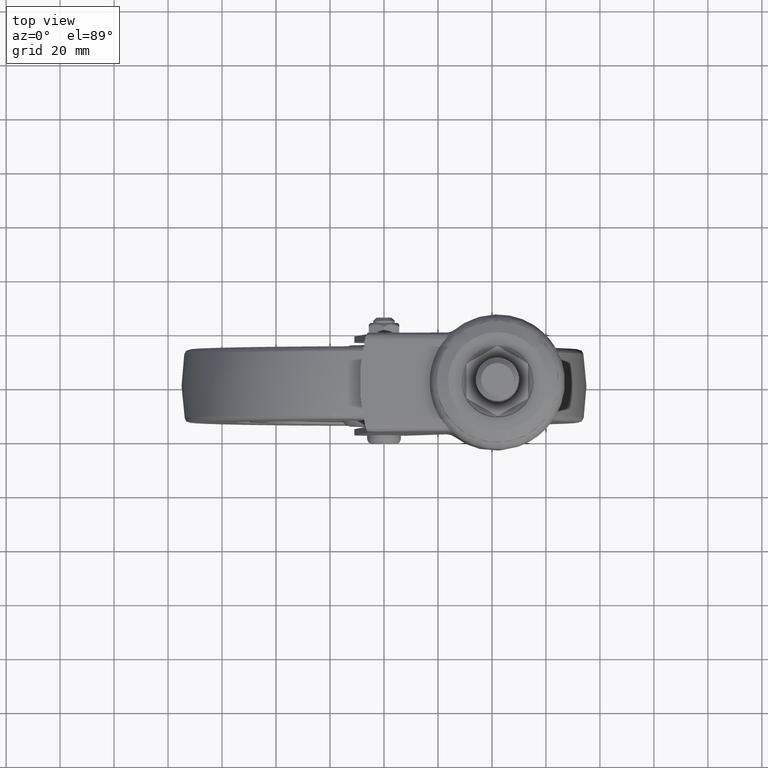
[diagram: clean part render]
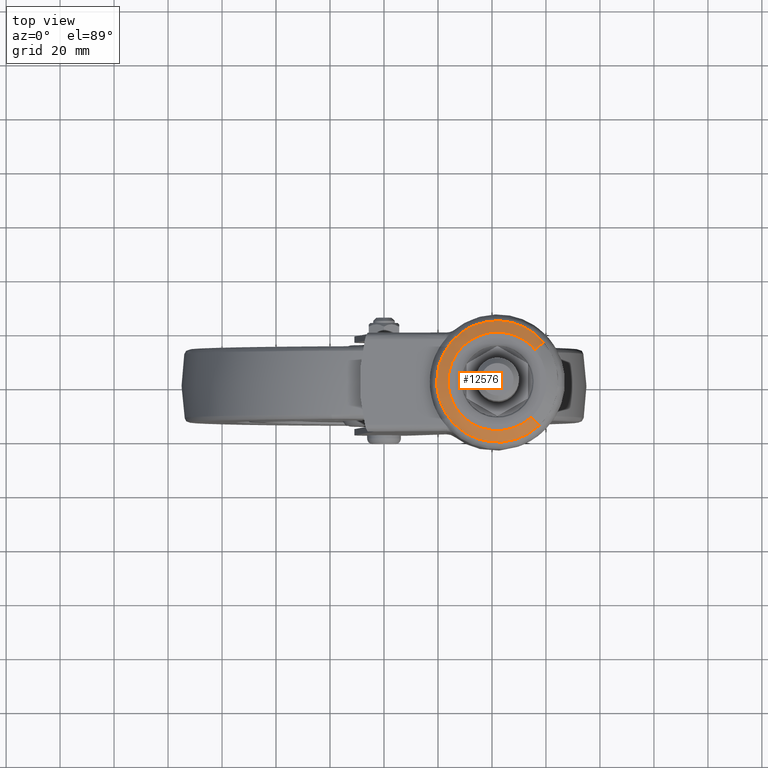
[diagram: same view with one face highlighted and labeled with its STEP entity id]
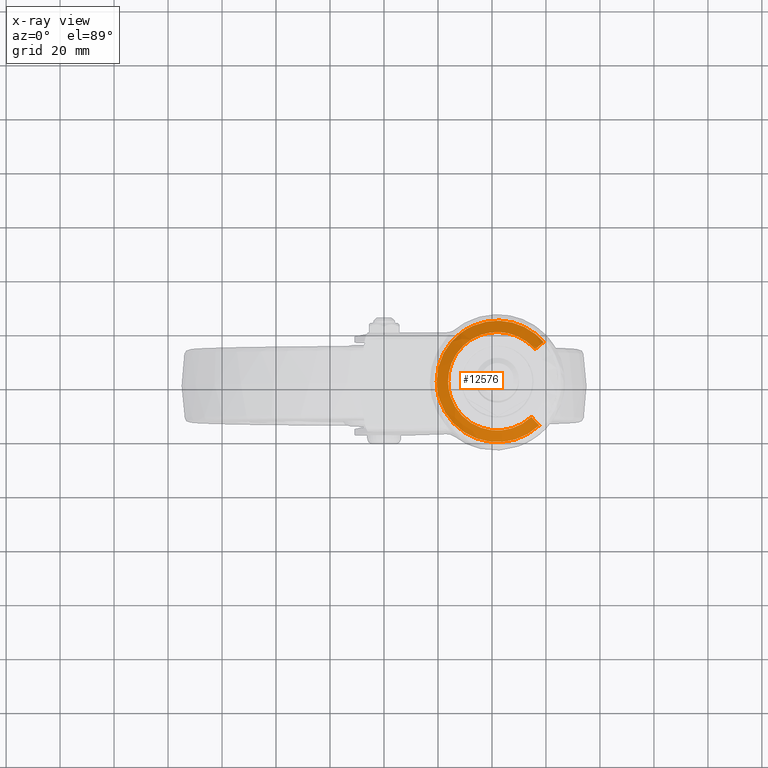
[diagram: x-ray of the same camera — body ghosted, the highlighted face saturated]
A machine part, top view. The second image highlights one B-rep face of the part: STEP entity #12576.
The next image is the same camera in x-ray: the body ghosted, the highlighted face saturated — about 0% of this face is hidden behind the body in this view.
In plain terms, the highlighted face is a freeform B-spline surface patch.
Its self-contained STEP definition (entity closure, byte-faithful):
#12201=CARTESIAN_POINT('',(55.995056423342227,17.617843734591879,97.899993897316563));
#12202=VERTEX_POINT('',#12201);
#12203=CARTESIAN_POINT('',(59.154957299173482,14.558759815509729,97.899993939861091));
#12204=VERTEX_POINT('',#12203);
#12205=CARTESIAN_POINT('',(55.995056423342234,17.617843734591876,97.899993897316563));
#12206=CARTESIAN_POINT('',(57.725215577037879,16.243460852997064,97.899993922917943));
#12207=CARTESIAN_POINT('',(59.154957299173482,14.558759815509735,97.899993939861091));
#12215=(BOUNDED_CURVE()B_SPLINE_CURVE(2,(#12205,#12206,#12207),.UNSPECIFIED.,.F.,.U.)B_SPLINE_CURVE_WITH_KNOTS((3,3),(0.357764839549117,0.387331629833459),.UNSPECIFIED.)CURVE()GEOMETRIC_REPRESENTATION_ITEM()RATIONAL_B_SPLINE_CURVE((0.856337523457522,0.851561364120012,0.854978670802108))REPRESENTATION_ITEM(''));
#12216=EDGE_CURVE('',#12202,#12204,#12215,.T.);
#12233=CARTESIAN_POINT('',(57.516061152120017,-16.294228844076631,97.899993939928294));
#12234=VERTEX_POINT('',#12233);
#12248=CARTESIAN_POINT('',(19.500000000000000,0.0,97.899993000000109));
#12249=VERTEX_POINT('',#12248);
#12250=CARTESIAN_POINT('',(57.516061152120017,-16.294228844076624,97.899993939928308));
#12251=CARTESIAN_POINT('',(50.999054822725405,-22.500000695948540,97.899993859363406));
#12252=CARTESIAN_POINT('',(42.000000517759020,-22.500000543725871,97.899993671397539));
#12253=CARTESIAN_POINT('',(19.500000155338594,-22.500000163129194,97.899993201433446));
#12254=CARTESIAN_POINT('',(19.500000000000000,0.0,97.899993000000109));
#12262=(BOUNDED_CURVE()B_SPLINE_CURVE(2,(#12250,#12251,#12252,#12253,#12254),.UNSPECIFIED.,.F.,.U.)B_SPLINE_CURVE_WITH_KNOTS((3,2,3),(0.628690594339474,0.750000000000000,1.0),.UNSPECIFIED.)CURVE()GEOMETRIC_REPRESENTATION_ITEM()RATIONAL_B_SPLINE_CURVE((0.853681049734259,0.857877190814967,1.0,0.707106781186548,1.0))REPRESENTATION_ITEM(''));
#12263=EDGE_CURVE('',#12234,#12249,#12262,.T.);
#12265=CARTESIAN_POINT('',(33.028175168114203,20.633864456143790,97.899993440759431));
#12266=VERTEX_POINT('',#12265);
#12267=CARTESIAN_POINT('',(19.500000000000000,0.0,97.899993000000109));
#12268=CARTESIAN_POINT('',(19.500000096456425,14.751668949942722,97.899993113114832));
#12269=CARTESIAN_POINT('',(33.028175168114210,20.633864456143790,97.899993440759431));
#12277=(BOUNDED_CURVE()B_SPLINE_CURVE(2,(#12267,#12268,#12269),.UNSPECIFIED.,.F.,.U.)B_SPLINE_CURVE_WITH_KNOTS((3,3),(0.0,0.182294314080322),.UNSPECIFIED.)CURVE()GEOMETRIC_REPRESENTATION_ITEM()RATIONAL_B_SPLINE_CURVE((1.0,0.786428926310496,0.884320191706000))REPRESENTATION_ITEM(''));
#12278=EDGE_CURVE('',#12249,#12266,#12277,.T.);
#12311=CARTESIAN_POINT('',(33.028175168114210,20.633864456143790,97.899993440759431));
#12312=CARTESIAN_POINT('',(37.320010124048331,22.500000394198420,97.899993544713624));
#12313=CARTESIAN_POINT('',(42.000000547844500,22.500000464934800,97.899993642458952));
#12314=CARTESIAN_POINT('',(49.849095553063592,22.500000583571047,97.899993806393582));
#12315=CARTESIAN_POINT('',(55.995056423342241,17.617843734591879,97.899993897316563));
#12323=(BOUNDED_CURVE()B_SPLINE_CURVE(2,(#12311,#12312,#12313,#12314,#12315),.UNSPECIFIED.,.F.,.U.)B_SPLINE_CURVE_WITH_KNOTS((3,2,3),(0.182294314080322,0.250000000000000,0.357764839549117),.UNSPECIFIED.)CURVE()GEOMETRIC_REPRESENTATION_ITEM()RATIONAL_B_SPLINE_CURVE((0.884320191706000,0.920677854876051,1.0,0.873745637078175,0.856337523457522))REPRESENTATION_ITEM(''));
#12324=EDGE_CURVE('',#12266,#12202,#12323,.T.);
#12473=CARTESIAN_POINT('',(54.424201042365247,-13.047305973904361,99.904246187567793));
#12474=CARTESIAN_POINT('',(54.050793111225282,-13.402880926816104,99.904246187567750));
#12475=CARTESIAN_POINT('',(53.657660251823380,-13.736517832800530,99.904246187567793));
#12476=CARTESIAN_POINT('',(39.921142419022843,-25.394178084623910,99.904246187567765));
#12477=CARTESIAN_POINT('',(28.263482167199466,-11.657660251823383,99.904246187567793));
#12478=CARTESIAN_POINT('',(16.605821915376097,2.078857580977151,99.904246187567765));
#12479=CARTESIAN_POINT('',(30.342339748176624,13.736517832800530,99.904246187567793));
#12480=CARTESIAN_POINT('',(44.078857580977136,25.394178084623910,99.904246187567765));
#12481=CARTESIAN_POINT('',(55.736517832800530,11.657660251823383,99.904246187567793));
#12482=CARTESIAN_POINT('',(56.377744258489528,-15.098824295855646,99.907834134865155));
#12483=CARTESIAN_POINT('',(55.945622811024606,-15.510308762362325,99.907834134865126));
#12484=CARTESIAN_POINT('',(55.490674948154734,-15.896405710816456,99.907834134865141));
#12485=CARTESIAN_POINT('',(39.594269237338310,-29.387080658971207,99.907834134865126));
#12486=CARTESIAN_POINT('',(26.103594289183544,-13.490674948154753,99.907834134865141));
#12487=CARTESIAN_POINT('',(12.612919341028794,2.405730762661699,99.907834134865126));
#12488=CARTESIAN_POINT('',(28.509325051845238,15.896405710816456,99.907834134865141));
#12489=CARTESIAN_POINT('',(44.405730762661690,29.387080658971207,99.907834134865126));
#12490=CARTESIAN_POINT('',(57.896405710816445,13.490674948154753,99.907834134865141));
#12491=CARTESIAN_POINT('',(57.620998178340876,-16.404430526811211,97.722706345376167));
#12492=CARTESIAN_POINT('',(57.151510877529731,-16.851496352030725,97.722706345376167));
#12493=CARTESIAN_POINT('',(56.657223344703880,-17.270979382194067,97.722706345376182));
#12494=CARTESIAN_POINT('',(39.386243962509795,-31.928202726897933,97.722706345376167));
#12495=CARTESIAN_POINT('',(24.729020617805940,-14.657223344703869,97.722706345376182));
#12496=CARTESIAN_POINT('',(10.071797273102073,2.613756037490201,97.722706345376167));
#12497=CARTESIAN_POINT('',(27.342776655296134,17.270979382194067,97.722706345376182));
#12498=CARTESIAN_POINT('',(44.613756037490205,31.928202726897933,97.722706345376167));
#12499=CARTESIAN_POINT('',(59.270979382194071,14.657223344703869,97.722706345376182));
#12507=(BOUNDED_SURFACE()B_SPLINE_SURFACE(2,2,((#12473,#12482,#12491),(#12474,#12483,#12492),(#12475,#12484,#12493),(#12476,#12485,#12494),(#12477,#12486,#12495),(#12478,#12487,#12496),(#12479,#12488,#12497),(#12480,#12489,#12498),(#12481,#12490,#12499)),.UNSPECIFIED.,.F.,.F.,.U.)B_SPLINE_SURFACE_WITH_KNOTS((3,2,2,2,3),(3,3),(0.0,1.501252507783669,39.032600995058502,76.563949482333328,114.095297969608200),(0.0,5.380909221602876),.UNSPECIFIED.)GEOMETRIC_REPRESENTATION_ITEM()RATIONAL_B_SPLINE_SURFACE(((0.908219781882889,0.821286330135678,0.908229909323797),(0.918234260922790,0.830342238081054,0.918244500033853),(0.929119563324331,0.840185615466256,0.929129923815989),(0.656986743759718,0.594100946151583,0.656994069733626),(0.929119563324331,0.840185615466256,0.929129923815989),(0.656986743759718,0.594100946151583,0.656994069733626),(0.929119563324331,0.840185615466256,0.929129923815989),(0.656986743759718,0.594100946151583,0.656994069733626),(0.929119563324331,0.840185615466256,0.929129923815989)))REPRESENTATION_ITEM('')SURFACE());
#12508=CARTESIAN_POINT('',(54.585295315564757,-13.216478069397329,99.899992999716488));
#12509=VERTEX_POINT('',#12508);
#12510=CARTESIAN_POINT('',(23.749932864114751,0.0,99.899993000000009));
#12511=VERTEX_POINT('',#12510);
#12512=CARTESIAN_POINT('',(54.585295315564764,-13.216478069397333,99.899992999716488));
#12513=CARTESIAN_POINT('',(49.299259670302419,-18.250067135885246,99.899993000000009));
#12514=CARTESIAN_POINT('',(42.0,-18.250067135885249,99.899993000000009));
#12515=CARTESIAN_POINT('',(23.749932864114758,-18.250067135885242,99.899992999999995));
#12516=CARTESIAN_POINT('',(23.749932864114751,0.0,99.899993000000009));
#12524=(BOUNDED_CURVE()B_SPLINE_CURVE(2,(#12512,#12513,#12514,#12515,#12516),.UNSPECIFIED.,.F.,.U.)B_SPLINE_CURVE_WITH_KNOTS((3,2,3),(0.628690594338149,0.750000000000000,1.0),.UNSPECIFIED.)CURVE()GEOMETRIC_REPRESENTATION_ITEM()RATIONAL_B_SPLINE_CURVE((0.853681049734168,0.857877190813414,1.0,0.707106781186548,1.0))REPRESENTATION_ITEM(''));
#12525=EDGE_CURVE('',#12509,#12511,#12524,.T.);
#12526=ORIENTED_EDGE('',*,*,#12525,.T.);
#12527=CARTESIAN_POINT('',(55.914627015321983,11.808814741223900,99.899992999892845));
#12528=VERTEX_POINT('',#12527);
#12529=CARTESIAN_POINT('',(23.749932864114751,0.0,99.899993000000009));
#12530=CARTESIAN_POINT('',(23.749932864114758,18.250067135885242,99.899992999999995));
#12531=CARTESIAN_POINT('',(42.0,18.250067135885249,99.899993000000009));
#12532=CARTESIAN_POINT('',(50.448181080487444,18.250067135885256,99.899993000000009));
#12533=CARTESIAN_POINT('',(55.914627015321976,11.808814741223902,99.899992999892845));
#12541=(BOUNDED_CURVE()B_SPLINE_CURVE(2,(#12529,#12530,#12531,#12532,#12533),.UNSPECIFIED.,.F.,.U.)B_SPLINE_CURVE_WITH_KNOTS((3,2,3),(0.0,0.250000000000000,0.387331629832332),.UNSPECIFIED.)CURVE()GEOMETRIC_REPRESENTATION_ITEM()RATIONAL_B_SPLINE_CURVE((1.0,0.707106781186548,1.0,0.839105987574042,0.854978670801847))REPRESENTATION_ITEM(''));
#12542=EDGE_CURVE('',#12511,#12528,#12541,.T.);
#12543=ORIENTED_EDGE('',*,*,#12542,.T.);
#12544=CARTESIAN_POINT('',(55.914627015321976,11.808814741223902,99.899992999892845));
#12545=CARTESIAN_POINT('',(57.859101081719018,13.459015928315699,99.803860391980109));
#12546=CARTESIAN_POINT('',(59.154957299173482,14.558759815509729,97.899993939861091));
#12554=(BOUNDED_CURVE()B_SPLINE_CURVE(2,(#12544,#12545,#12546),.UNSPECIFIED.,.F.,.U.)B_SPLINE_CURVE_WITH_KNOTS((3,3),(-1.564483487816812,-0.435443981062009),.UNSPECIFIED.)CURVE()GEOMETRIC_REPRESENTATION_ITEM()RATIONAL_B_SPLINE_CURVE((0.921408838490264,0.847896797725239,0.921418284135445))REPRESENTATION_ITEM(''));
#12555=EDGE_CURVE('',#12528,#12204,#12554,.T.);
#12556=ORIENTED_EDGE('',*,*,#12555,.T.);
#12557=ORIENTED_EDGE('',*,*,#12216,.F.);
#12558=ORIENTED_EDGE('',*,*,#12324,.F.);
#12559=ORIENTED_EDGE('',*,*,#12278,.F.);
#12560=ORIENTED_EDGE('',*,*,#12263,.F.);
#12561=CARTESIAN_POINT('',(54.585295315564764,-13.216478069397331,99.899992999716503));
#12562=CARTESIAN_POINT('',(56.344004355525911,-15.063390587153279,99.803860387945889));
#12563=CARTESIAN_POINT('',(57.516061152120010,-16.294228844076628,97.899993939928294));
#12571=(BOUNDED_CURVE()B_SPLINE_CURVE(2,(#12561,#12562,#12563),.UNSPECIFIED.,.F.,.U.)B_SPLINE_CURVE_WITH_KNOTS((3,3),(-1.564483485566103,-0.435443981083663),.UNSPECIFIED.)CURVE()GEOMETRIC_REPRESENTATION_ITEM()RATIONAL_B_SPLINE_CURVE((0.900682484241638,0.828824038396678,0.900691717698334))REPRESENTATION_ITEM(''));
#12572=EDGE_CURVE('',#12509,#12234,#12571,.T.);
#12573=ORIENTED_EDGE('',*,*,#12572,.F.);
#12574=EDGE_LOOP('',(#12526,#12543,#12556,#12557,#12558,#12559,#12560,#12573));
#12575=FACE_OUTER_BOUND('',#12574,.T.);
#12576=ADVANCED_FACE('',(#12575),#12507,.T.);